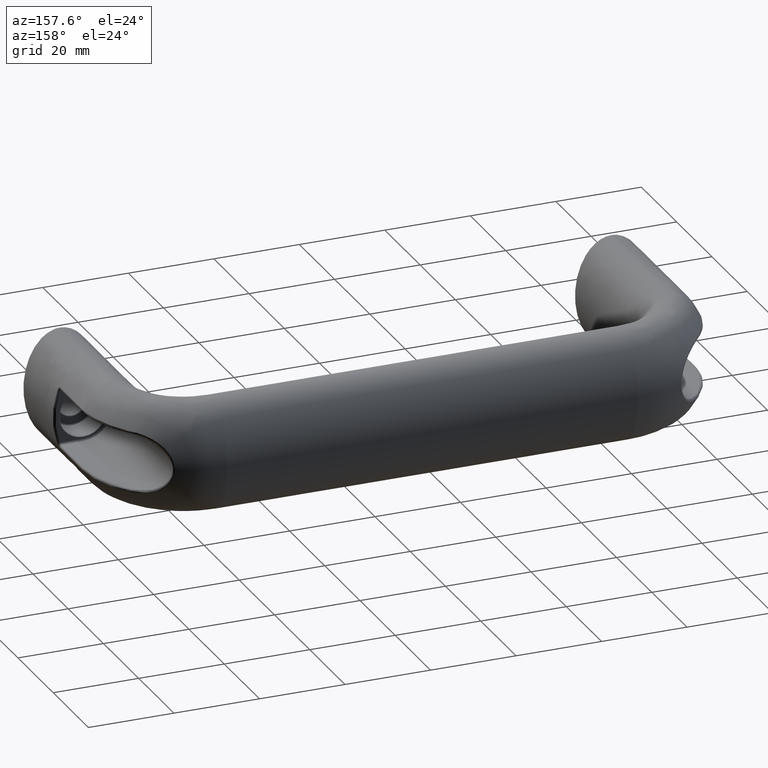
[diagram: clean part render]
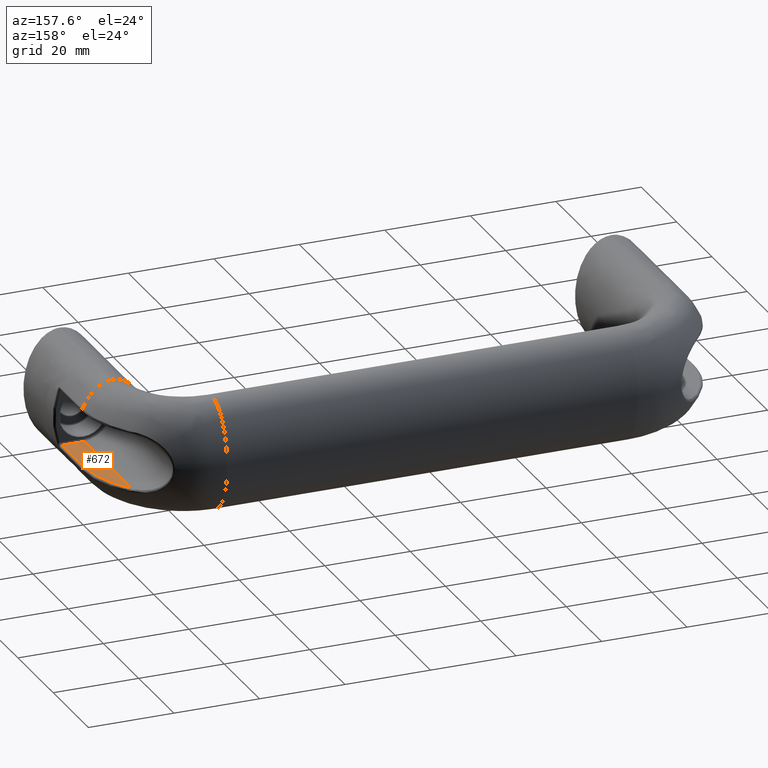
[diagram: same view with one face highlighted and labeled with its STEP entity id]
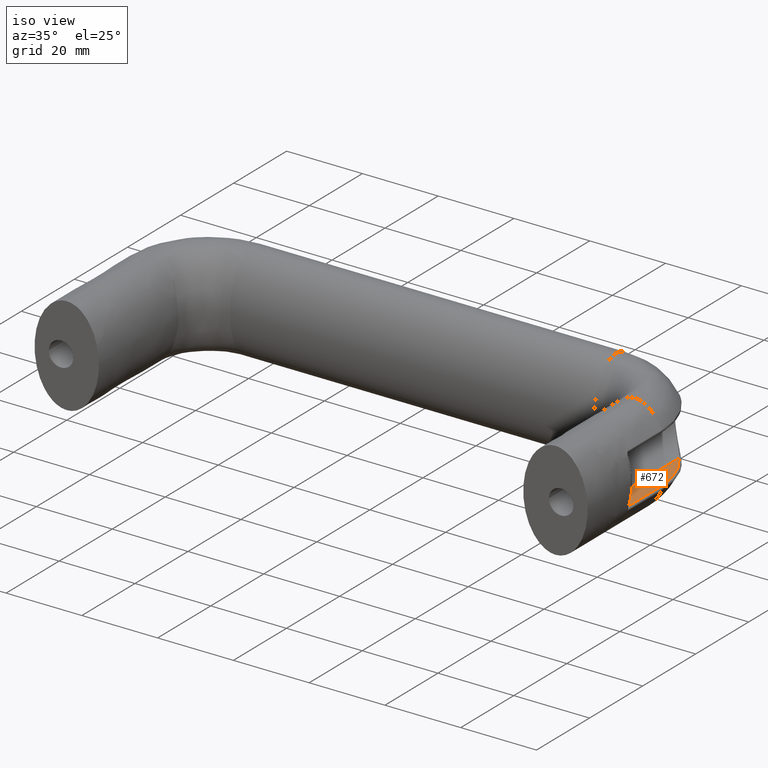
[diagram: same view with one face highlighted and labeled with its STEP entity id]
A machine part, auxiliary view. The second image highlights one B-rep face of the part: STEP entity #672.
A second angle (iso view) of the same face is appended — the face is thin or edge-on in the first view.
In plain terms, the highlighted planar face has unit normal (0, 0, -1).
Its self-contained STEP definition (entity closure, byte-faithful):
#55=LINE('',#1080,#77);
#56=LINE('',#1082,#78);
#57=LINE('',#1083,#79);
#77=VECTOR('',#829,27.0082159809617);
#78=VECTOR('',#830,5.11900367569201);
#79=VECTOR('',#831,12.5);
#153=PLANE('',#729);
#165=FACE_OUTER_BOUND('',#215,.T.);
#215=EDGE_LOOP('',(#487,#488,#489,#490));
#279=B_SPLINE_CURVE_WITH_KNOTS('',3,(#1074,#1075,#1076,#1077,#1078),
 .UNSPECIFIED.,.F.,.F.,(4,1,4),(0.,0.672146140111269,1.56834099359296),
 .UNSPECIFIED.);
#323=VERTEX_POINT('',#1072);
#324=VERTEX_POINT('',#1073);
#325=VERTEX_POINT('',#1079);
#326=VERTEX_POINT('',#1081);
#387=EDGE_CURVE('',#323,#324,#279,.T.);
#388=EDGE_CURVE('',#323,#325,#55,.T.);
#389=EDGE_CURVE('',#326,#325,#56,.T.);
#390=EDGE_CURVE('',#324,#326,#57,.T.);
#487=ORIENTED_EDGE('',*,*,#387,.F.);
#488=ORIENTED_EDGE('',*,*,#388,.T.);
#489=ORIENTED_EDGE('',*,*,#389,.F.);
#490=ORIENTED_EDGE('',*,*,#390,.F.);
#672=ADVANCED_FACE('',(#165),#153,.F.);
#729=AXIS2_PLACEMENT_3D('',#1071,#827,#828);
#827=DIRECTION('center_axis',(0.,0.,-1.));
#828=DIRECTION('ref_axis',(1.,0.,0.));
#829=DIRECTION('',(0.,-1.,0.));
#830=DIRECTION('',(-1.,0.,0.));
#831=DIRECTION('',(0.,-1.,0.));
#1071=CARTESIAN_POINT('Origin',(130.5,55.,-6.49999999999999));
#1072=CARTESIAN_POINT('',(130.500000000083,44.5082159809617,-6.49999999999999));
#1073=CARTESIAN_POINT('',(135.619003675692,30.,-6.49999999999999));
#1074=CARTESIAN_POINT('Ctrl Pts',(130.500000000288,44.5082159808272,-6.49999999999999));
#1075=CARTESIAN_POINT('Ctrl Pts',(131.906006577994,42.7638169153206,-6.49999999999999));
#1076=CARTESIAN_POINT('Ctrl Pts',(134.592056537393,38.2133579995256,-6.49999999999999));
#1077=CARTESIAN_POINT('Ctrl Pts',(135.619003675692,32.9873161782723,-6.49999999999999));
#1078=CARTESIAN_POINT('Ctrl Pts',(135.619003675692,30.,-6.49999999999999));
#1079=CARTESIAN_POINT('',(130.5,17.5,-6.49999999999999));
#1080=CARTESIAN_POINT('',(130.5,55.,-6.49999999999999));
#1081=CARTESIAN_POINT('',(135.619003675692,17.5,-6.49999999999999));
#1082=CARTESIAN_POINT('',(130.625,17.5,-6.49999999999999));
#1083=CARTESIAN_POINT('',(135.619003675692,30.,-6.49999999999999));